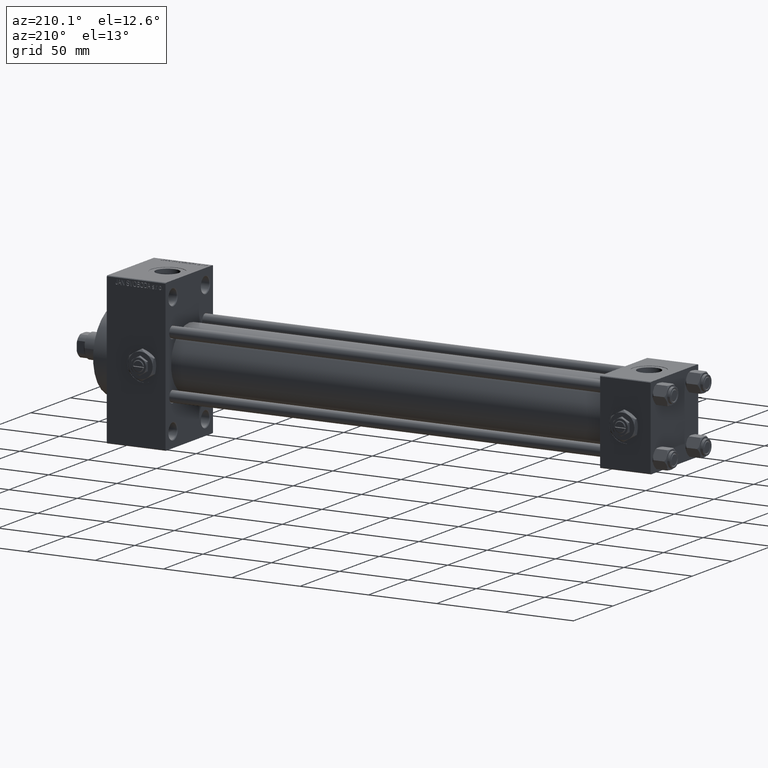
[diagram: clean part render]
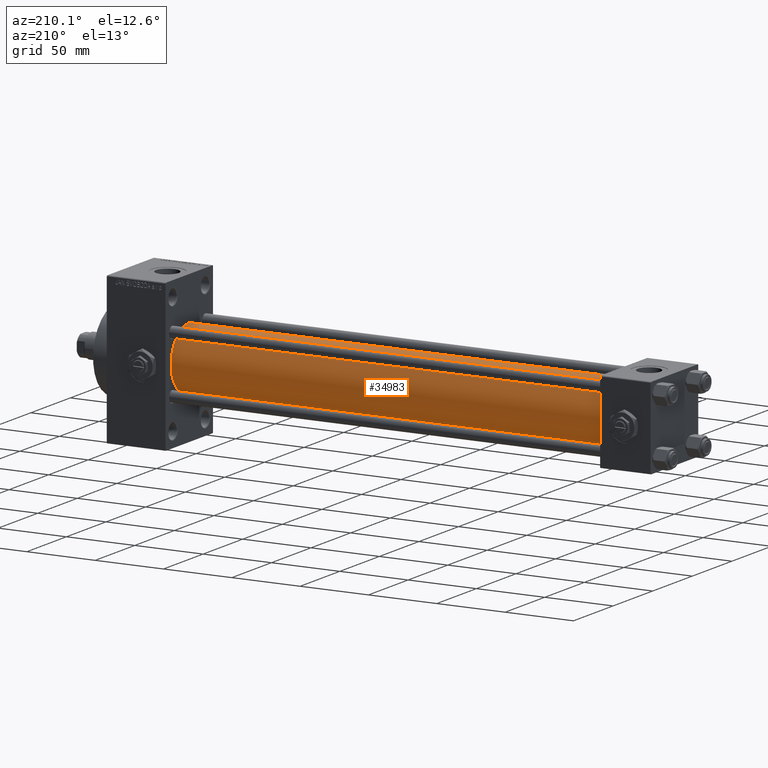
[diagram: same view with one face highlighted and labeled with its STEP entity id]
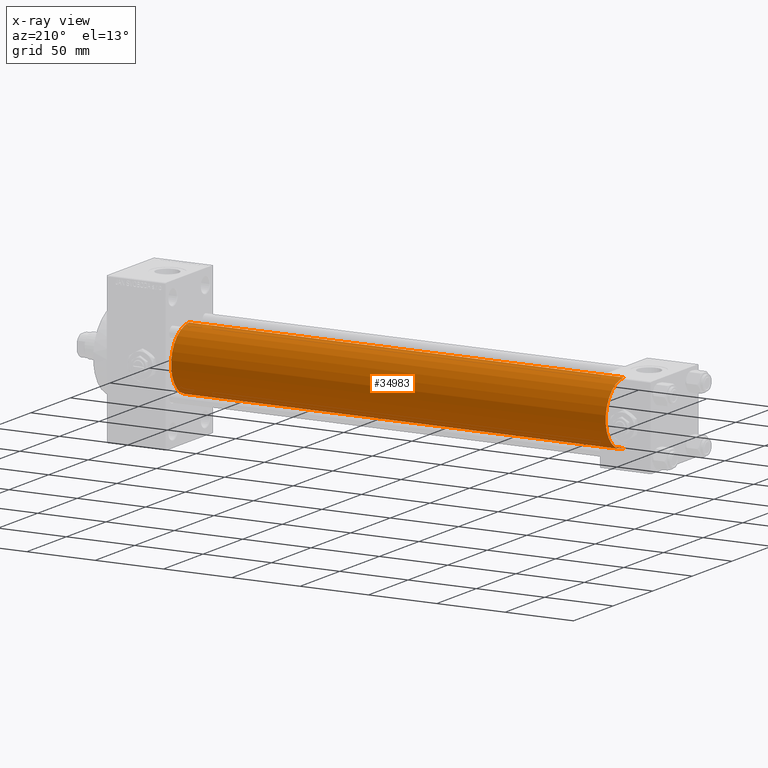
[diagram: x-ray of the same camera — body ghosted, the highlighted face saturated]
A machine part, auxiliary view. The second image highlights one B-rep face of the part: STEP entity #34983.
The next image is the same camera in x-ray: the body ghosted, the highlighted face saturated — about 0% of this face is hidden behind the body in this view.
In plain terms, the highlighted cylindrical surface (edge-blend (fillet) strip) has radius 23 mm, axis along (-1, -0, -0).
Its self-contained STEP definition (entity closure, byte-faithful):
#2395 = FACE_OUTER_BOUND ( 'NONE', #37141, .T. ) ;
#2728 = VERTEX_POINT ( 'NONE', #27161 ) ;
#2757 = DIRECTION ( 'NONE',  ( 1.000000000000000000, -0.000000000000000000, 0.000000000000000000 ) ) ;
#3006 = DIRECTION ( 'NONE',  ( 0.000000000000000000, 0.000000000000000000, 1.000000000000000000 ) ) ;
#5675 = DIRECTION ( 'NONE',  ( 0.000000000000000000, 0.000000000000000000, -1.000000000000000000 ) ) ;
#9605 = CIRCLE ( 'NONE', #30338, 23.00000000000000000 ) ;
#10074 = CARTESIAN_POINT ( 'NONE',  ( 355.0000000000000000, 2.146024240737012665E-16, -23.00000000000000000 ) ) ;
#12140 = VECTOR ( 'NONE', #18062, 1000.000000000000000 ) ;
#12919 = EDGE_CURVE ( 'NONE', #47994, #46763, #9605, .T. ) ;
#13963 = VECTOR ( 'NONE', #40283, 1000.000000000000000 ) ;
#15041 = ORIENTED_EDGE ( 'NONE', *, *, #12919, .F. ) ;
#16768 = EDGE_CURVE ( 'NONE', #36772, #2728, #40808, .T. ) ;
#17348 = EDGE_CURVE ( 'NONE', #47994, #36772, #18537, .T. ) ;
#18062 = DIRECTION ( 'NONE',  ( -1.000000000000000000, -0.000000000000000000, -0.000000000000000000 ) ) ;
#18537 = LINE ( 'NONE', #10074, #12140 ) ;
#21759 = CARTESIAN_POINT ( 'NONE',  ( 36.99999999999997868, 2.146024240737012665E-16, -23.00000000000000000 ) ) ;
#26843 = EDGE_CURVE ( 'NONE', #46763, #2728, #43271, .T. ) ;
#27161 = CARTESIAN_POINT ( 'NONE',  ( 36.99999999999997868, -2.602085213965210642E-15, 23.00000000000000000 ) ) ;
#29110 = DIRECTION ( 'NONE',  ( 1.000000000000000000, 0.000000000000000000, 0.000000000000000000 ) ) ;
#30109 = CARTESIAN_POINT ( 'NONE',  ( 355.0000000000000000, -2.602085213965210642E-15, 23.00000000000000000 ) ) ;
#30338 = AXIS2_PLACEMENT_3D ( 'NONE', #44288, #29110, #5675 ) ;
#30542 = ORIENTED_EDGE ( 'NONE', *, *, #26843, .F. ) ;
#30901 = CARTESIAN_POINT ( 'NONE',  ( 355.0000000000000000, 2.146024240737012665E-16, -23.00000000000000000 ) ) ;
#31162 = ORIENTED_EDGE ( 'NONE', *, *, #16768, .T. ) ;
#34983 = ADVANCED_FACE ( 'NONE', ( #2395 ), #48253, .T. ) ;
#36299 = CARTESIAN_POINT ( 'NONE',  ( 355.0000000000000000, -2.602085213965210642E-15, 0.000000000000000000 ) ) ;
#36544 = DIRECTION ( 'NONE',  ( -1.000000000000000000, -0.000000000000000000, -0.000000000000000000 ) ) ;
#36772 = VERTEX_POINT ( 'NONE', #21759 ) ;
#37141 = EDGE_LOOP ( 'NONE', ( #15041, #39467, #31162, #30542 ) ) ;
#37150 = CARTESIAN_POINT ( 'NONE',  ( 36.99999999999997868, -2.602085213965210642E-15, 0.000000000000000000 ) ) ;
#39467 = ORIENTED_EDGE ( 'NONE', *, *, #17348, .T. ) ;
#40283 = DIRECTION ( 'NONE',  ( -1.000000000000000000, -0.000000000000000000, -0.000000000000000000 ) ) ;
#40808 = CIRCLE ( 'NONE', #43185, 23.00000000000000000 ) ;
#43030 = CARTESIAN_POINT ( 'NONE',  ( 355.0000000000000000, -2.602085213965210642E-15, 23.00000000000000000 ) ) ;
#43185 = AXIS2_PLACEMENT_3D ( 'NONE', #37150, #2757, #3006 ) ;
#43271 = LINE ( 'NONE', #43030, #13963 ) ;
#44262 = DIRECTION ( 'NONE',  ( 0.000000000000000000, 0.000000000000000000, 1.000000000000000000 ) ) ;
#44288 = CARTESIAN_POINT ( 'NONE',  ( 355.0000000000000000, -2.602085213965210642E-15, 0.000000000000000000 ) ) ;
#46763 = VERTEX_POINT ( 'NONE', #30109 ) ;
#47669 = AXIS2_PLACEMENT_3D ( 'NONE', #36299, #36544, #44262 ) ;
#47994 = VERTEX_POINT ( 'NONE', #30901 ) ;
#48253 = CYLINDRICAL_SURFACE ( 'NONE', #47669, 23.00000000000000000 ) ;